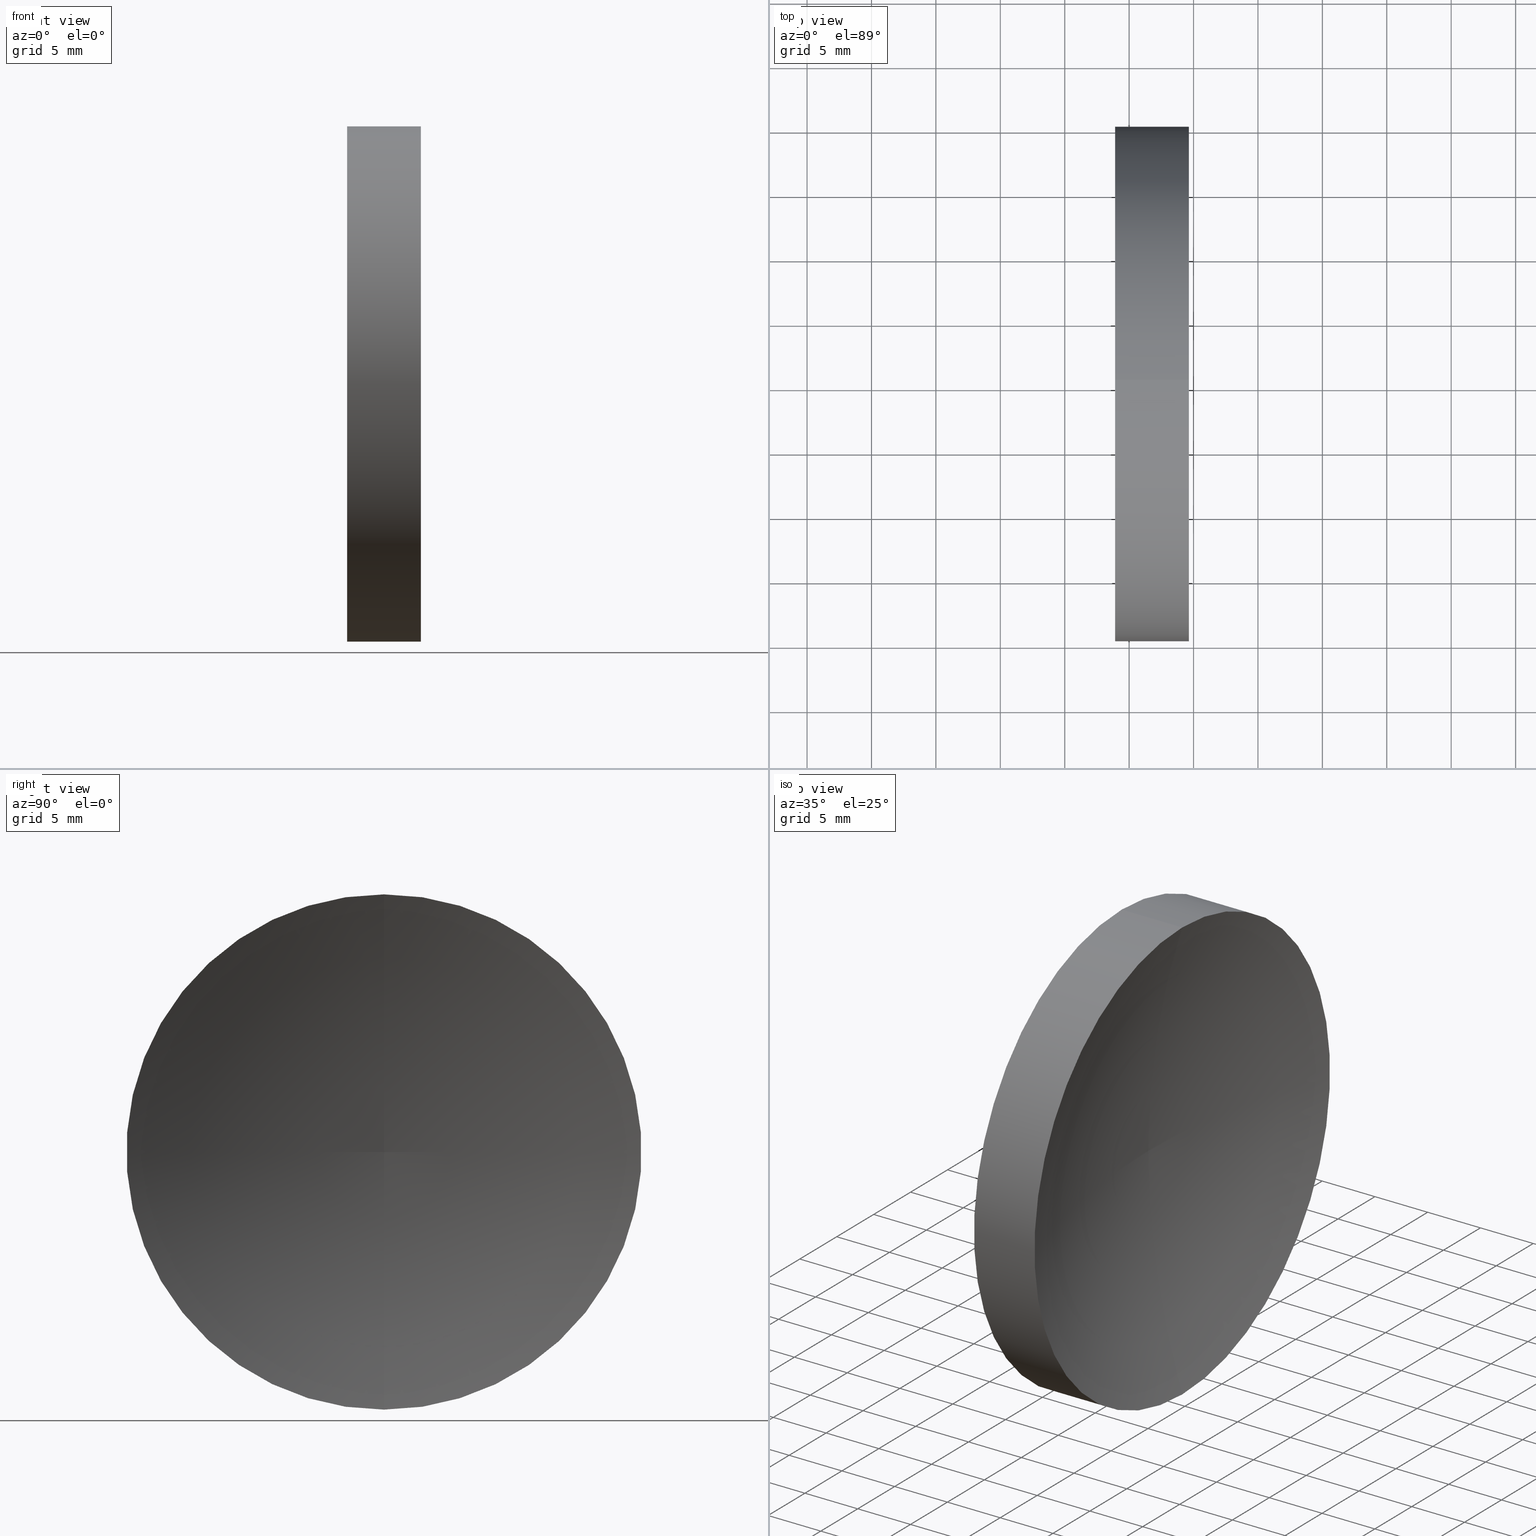
[diagram: canonical four-view strip — front | top / right | iso, engineering-drawing reading convention]
A machine part, canonical four-view strip (front | top / right | iso — engineering-drawing reading convention). The complete STEP part file that produces these views, byte-faithful:
ISO-10303-21;
HEADER;
FILE_DESCRIPTION (( 'STEP AP214' ),
    '1' );
FILE_NAME ('120048.STEP',
    '2019-06-17T07:08:32',
    ( '' ),
    ( '' ),
    'SwSTEP 2.0',
    'SolidWorks 2016',
    '' );
FILE_SCHEMA (( 'AUTOMOTIVE_DESIGN' ));
ENDSEC;

DATA;
#1 = EDGE_LOOP ( 'NONE', ( #140, #144, #99, #163 ) ) ;
#2 = ORIENTED_EDGE ( 'NONE', *, *, #83, .F. ) ;
#3 = CARTESIAN_POINT ( 'NONE',  ( 105.6218371238301200, 65.15563045701519200, 20.00000000000000400 ) ) ;
#4 = DIRECTION ( 'NONE',  ( 0.0000000000000000000, -1.000000000000000000, 0.0000000000000000000 ) ) ;
#5 = CARTESIAN_POINT ( 'NONE',  ( 113.9119316741596200, 65.15563045701519200, 0.0000000000000000000 ) ) ;
#6 =( NAMED_UNIT ( * ) PLANE_ANGLE_UNIT ( ) SI_UNIT ( $, .RADIAN. ) );
#7 = ADVANCED_FACE ( 'NONE', ( #31 ), #39, .F. ) ;
#8 = DIRECTION ( 'NONE',  ( 0.0000000000000000000, 0.0000000000000000000, 1.000000000000000000 ) ) ;
#9 = VERTEX_POINT ( 'NONE', #75 ) ;
#10 = DIRECTION ( 'NONE',  ( 0.0000000000000000000, 0.0000000000000000000, 1.000000000000000000 ) ) ;
#11 = ORIENTED_EDGE ( 'NONE', *, *, #72, .T. ) ;
#12 = AXIS2_PLACEMENT_3D ( 'NONE', #118, #146, #47 ) ;
#13 = VECTOR ( 'NONE', #105, 1000.000000000000000 ) ;
#14 = ORIENTED_EDGE ( 'NONE', *, *, #93, .F. ) ;
#15 = ORIENTED_EDGE ( 'NONE', *, *, #79, .F. ) ;
#16 = CYLINDRICAL_SURFACE ( 'NONE', #96, 20.00000000000000400 ) ;
#17 = DIRECTION ( 'NONE',  ( 0.0000000000000000000, 0.0000000000000000000, 1.000000000000000000 ) ) ;
#18 = PRODUCT_DEFINITION ( 'δ֪', '', #52, #46 ) ;
#19 = CARTESIAN_POINT ( 'NONE',  ( 180.9617514573222900, 65.15563045701519200, -0.1525318367439215700 ) ) ;
#20 = DIRECTION ( 'NONE',  ( -1.000000000000000000, -0.0000000000000000000, -0.0000000000000000000 ) ) ;
#21 = FACE_OUTER_BOUND ( 'NONE', #94, .T. ) ;
#22 = ADVANCED_FACE ( 'NONE', ( #76 ), #16, .T. ) ;
#23 = DIRECTION ( 'NONE',  ( -1.000000000000000000, -0.0000000000000000000, -0.0000000000000000000 ) ) ;
#24 =( GEOMETRIC_REPRESENTATION_CONTEXT ( 3 ) GLOBAL_UNCERTAINTY_ASSIGNED_CONTEXT ( ( #106 ) ) GLOBAL_UNIT_ASSIGNED_CONTEXT ( ( #122, #86, #49 ) ) REPRESENTATION_CONTEXT ( 'NONE', 'WORKASPACE' ) );
#25 = CARTESIAN_POINT ( 'NONE',  ( 105.6218371238301200, 65.15563045701519200, -20.00000000000000400 ) ) ;
#26 = PRODUCT ( '120048', '120048', '', ( #48 ) ) ;
#27 =( NAMED_UNIT ( * ) SI_UNIT ( $, .STERADIAN. ) SOLID_ANGLE_UNIT ( ) );
#28 = CARTESIAN_POINT ( 'NONE',  ( 180.9617514573222900, 65.15563045701519200, 0.0000000000000000000 ) ) ;
#29 = VERTEX_POINT ( 'NONE', #50 ) ;
#30 = STYLED_ITEM ( 'NONE', ( #114 ), #68 ) ;
#31 = FACE_OUTER_BOUND ( 'NONE', #67, .T. ) ;
#32 = ORIENTED_EDGE ( 'NONE', *, *, #89, .F. ) ;
#33 = SURFACE_STYLE_FILL_AREA ( #149 ) ;
#34 = EDGE_LOOP ( 'NONE', ( #136, #11 ) ) ;
#35 = APPLICATION_CONTEXT ( 'automotive_design' ) ;
#36 = CARTESIAN_POINT ( 'NONE',  ( 113.9119316741596200, 65.15563045701519200, 0.0000000000000000000 ) ) ;
#37 = PRESENTATION_LAYER_ASSIGNMENT (  '', '', ( #30 ) ) ;
#38 = CARTESIAN_POINT ( 'NONE',  ( 119.6382000225837700, 65.15563045701519200, 0.0000000000000000000 ) ) ;
#39 = TOROIDAL_SURFACE ( 'NONE', #54, -0.1525318367439215700, 64.54999999999999700 ) ;
#40 = VERTEX_POINT ( 'NONE', #108 ) ;
#41 =( NAMED_UNIT ( * ) PLANE_ANGLE_UNIT ( ) SI_UNIT ( $, .RADIAN. ) );
#42 = COLOUR_RGB ( '',1.000000000000000000, 1.000000000000000000, 1.000000000000000000 ) ;
#43 = FACE_OUTER_BOUND ( 'NONE', #64, .T. ) ;
#44 = AXIS2_PLACEMENT_3D ( 'NONE', #5, #59, #56 ) ;
#45 = CIRCLE ( 'NONE', #116, 20.00000000000000400 ) ;
#46 = PRODUCT_DEFINITION_CONTEXT ( 'detailed design', #35, 'design' ) ;
#47 = DIRECTION ( 'NONE',  ( 1.000000000000000000, 0.0000000000000000000, 0.0000000000000000000 ) ) ;
#48 = PRODUCT_CONTEXT ( 'NONE', #100, 'mechanical' ) ;
#49 =( NAMED_UNIT ( * ) SI_UNIT ( $, .STERADIAN. ) SOLID_ANGLE_UNIT ( ) );
#50 = CARTESIAN_POINT ( 'NONE',  ( 119.6382000225837700, 65.15563045701519200, 20.00000000000000400 ) ) ;
#51 = CLOSED_SHELL ( 'NONE', ( #60, #130, #7, #22, #107 ) ) ;
#52 = PRODUCT_DEFINITION_FORMATION_WITH_SPECIFIED_SOURCE ( '�κ�', '', #26, .NOT_KNOWN. ) ;
#53 = AXIS2_PLACEMENT_3D ( 'NONE', #19, #4, #104 ) ;
#54 = AXIS2_PLACEMENT_3D ( 'NONE', #28, #126, #10 ) ;
#55 = ORIENTED_EDGE ( 'NONE', *, *, #113, .T. ) ;
#56 = DIRECTION ( 'NONE',  ( 0.0000000000000000000, 0.0000000000000000000, -1.000000000000000000 ) ) ;
#57 = DIRECTION ( 'NONE',  ( -0.0000000000000000000, 1.000000000000000000, 1.224646799147353200E-016 ) ) ;
#58 = FILL_AREA_STYLE ('',( #162 ) ) ;
#59 = DIRECTION ( 'NONE',  ( 1.000000000000000000, 0.0000000000000000000, 0.0000000000000000000 ) ) ;
#60 = ADVANCED_FACE ( 'NONE', ( #43 ), #109, .T. ) ;
#61 = CARTESIAN_POINT ( 'NONE',  ( 180.9617514573222900, 65.15563045701519200, 0.0000000000000000000 ) ) ;
#62 = VERTEX_POINT ( 'NONE', #125 ) ;
#63 = DIRECTION ( 'NONE',  ( -1.000000000000000000, -0.0000000000000000000, -0.0000000000000000000 ) ) ;
#64 = EDGE_LOOP ( 'NONE', ( #137, #55, #14, #32 ) ) ;
#65 = COLOUR_RGB ( '',1.000000000000000000, 1.000000000000000000, 1.000000000000000000 ) ;
#66 = CIRCLE ( 'NONE', #53, 64.54999999999999700 ) ;
#67 = EDGE_LOOP ( 'NONE', ( #15, #119, #70 ) ) ;
#68 = ADVANCED_BREP_SHAPE_REPRESENTATION ( '120048', ( #138, #12 ), #24 ) ;
#69 = CIRCLE ( 'NONE', #78, 64.54999999999999700 ) ;
#70 = ORIENTED_EDGE ( 'NONE', *, *, #83, .T. ) ;
#71 =( GEOMETRIC_REPRESENTATION_CONTEXT ( 3 ) GLOBAL_UNCERTAINTY_ASSIGNED_CONTEXT ( ( #92 ) ) GLOBAL_UNIT_ASSIGNED_CONTEXT ( ( #74, #6, #27 ) ) REPRESENTATION_CONTEXT ( 'NONE', 'WORKASPACE' ) );
#72 = EDGE_CURVE ( 'NONE', #62, #95, #115, .T. ) ;
#73 = PLANE ( 'NONE',  #44 ) ;
#74 =( LENGTH_UNIT ( ) NAMED_UNIT ( * ) SI_UNIT ( .MILLI., .METRE. ) );
#75 = CARTESIAN_POINT ( 'NONE',  ( 119.6382000225837700, 65.15563045701519200, -20.00000000000000400 ) ) ;
#76 = FACE_OUTER_BOUND ( 'NONE', #1, .T. ) ;
#77 =( LENGTH_UNIT ( ) NAMED_UNIT ( * ) SI_UNIT ( .MILLI., .METRE. ) );
#78 = AXIS2_PLACEMENT_3D ( 'NONE', #101, #57, #123 ) ;
#79 = EDGE_CURVE ( 'NONE', #9, #40, #69, .T. ) ;
#80 = SURFACE_SIDE_STYLE ('',( #150 ) ) ;
#81 = CIRCLE ( 'NONE', #88, 20.00000000000000400 ) ;
#82 = AXIS2_PLACEMENT_3D ( 'NONE', #91, #133, #131 ) ;
#83 = EDGE_CURVE ( 'NONE', #29, #40, #66, .T. ) ;
#84 = DIRECTION ( 'NONE',  ( -1.000000000000000000, -0.0000000000000000000, -0.0000000000000000000 ) ) ;
#85 = TOROIDAL_SURFACE ( 'NONE', #158, -0.1525318367439215700, 64.54999999999999700 ) ;
#86 =( NAMED_UNIT ( * ) PLANE_ANGLE_UNIT ( ) SI_UNIT ( $, .RADIAN. ) );
#87 = SURFACE_STYLE_USAGE ( .BOTH. , #157 ) ;
#88 = AXIS2_PLACEMENT_3D ( 'NONE', #36, #20, #120 ) ;
#89 = EDGE_CURVE ( 'NONE', #29, #95, #151, .T. ) ;
#90 = FILL_AREA_STYLE_COLOUR ( '', #65 ) ;
#91 = CARTESIAN_POINT ( 'NONE',  ( 119.6382000225837700, 65.15563045701519200, 0.0000000000000000000 ) ) ;
#92 = UNCERTAINTY_MEASURE_WITH_UNIT (LENGTH_MEASURE( 1.000000000000000100E-005 ), #74, 'distance_accuracy_value', 'NONE');
#93 = EDGE_CURVE ( 'NONE', #95, #62, #81, .T. ) ;
#94 = EDGE_LOOP ( 'NONE', ( #110, #139, #2 ) ) ;
#95 = VERTEX_POINT ( 'NONE', #159 ) ;
#96 = AXIS2_PLACEMENT_3D ( 'NONE', #135, #23, #111 ) ;
#97 = EDGE_CURVE ( 'NONE', #9, #29, #124, .T. ) ;
#98 = PRODUCT_DEFINITION_SHAPE ( 'NONE', 'NONE',  #18 ) ;
#99 = ORIENTED_EDGE ( 'NONE', *, *, #89, .T. ) ;
#100 = APPLICATION_CONTEXT ( 'automotive_design' ) ;
#101 = CARTESIAN_POINT ( 'NONE',  ( 180.9617514573222900, 65.15563045701519200, 0.1525318367439215700 ) ) ;
#102 = PRESENTATION_LAYER_ASSIGNMENT (  '', '', ( #112 ) ) ;
#103 = APPLICATION_PROTOCOL_DEFINITION ( 'draft international standard', 'automotive_design', 1998, #100 ) ;
#104 = DIRECTION ( 'NONE',  ( 0.0000000000000000000, 0.0000000000000000000, -1.000000000000000000 ) ) ;
#105 = DIRECTION ( 'NONE',  ( -1.000000000000000000, -0.0000000000000000000, -0.0000000000000000000 ) ) ;
#106 = UNCERTAINTY_MEASURE_WITH_UNIT (LENGTH_MEASURE( 1.000000000000000100E-005 ), #122, 'distance_accuracy_value', 'NONE');
#107 = ADVANCED_FACE ( 'NONE', ( #143 ), #73, .F. ) ;
#108 = CARTESIAN_POINT ( 'NONE',  ( 116.4119316741596300, 65.15563045701519200, 0.0000000000000000000 ) ) ;
#109 = CYLINDRICAL_SURFACE ( 'NONE', #148, 20.00000000000000400 ) ;
#110 = ORIENTED_EDGE ( 'NONE', *, *, #97, .F. ) ;
#111 = DIRECTION ( 'NONE',  ( 0.0000000000000000000, 0.0000000000000000000, 1.000000000000000000 ) ) ;
#112 = STYLED_ITEM ( 'NONE', ( #164 ), #138 ) ;
#113 = EDGE_CURVE ( 'NONE', #9, #62, #154, .T. ) ;
#114 = PRESENTATION_STYLE_ASSIGNMENT (( #127 ) ) ;
#115 = CIRCLE ( 'NONE', #128, 20.00000000000000400 ) ;
#116 = AXIS2_PLACEMENT_3D ( 'NONE', #38, #134, #17 ) ;
#117 = VECTOR ( 'NONE', #161, 1000.000000000000000 ) ;
#118 = CARTESIAN_POINT ( 'NONE',  ( 0.0000000000000000000, 0.0000000000000000000, 0.0000000000000000000 ) ) ;
#119 = ORIENTED_EDGE ( 'NONE', *, *, #142, .F. ) ;
#120 = DIRECTION ( 'NONE',  ( 0.0000000000000000000, 0.0000000000000000000, 1.000000000000000000 ) ) ;
#121 = CARTESIAN_POINT ( 'NONE',  ( 113.9119316741596200, 65.15563045701519200, 0.0000000000000000000 ) ) ;
#122 =( LENGTH_UNIT ( ) NAMED_UNIT ( * ) SI_UNIT ( .MILLI., .METRE. ) );
#123 = DIRECTION ( 'NONE',  ( 0.0000000000000000000, -2.149928397802394700E-016, 1.000000000000000000 ) ) ;
#124 = CIRCLE ( 'NONE', #82, 20.00000000000000400 ) ;
#125 = CARTESIAN_POINT ( 'NONE',  ( 113.9119316741596200, 65.15563045701519200, -20.00000000000000400 ) ) ;
#126 = DIRECTION ( 'NONE',  ( -1.000000000000000000, -0.0000000000000000000, -0.0000000000000000000 ) ) ;
#127 = SURFACE_STYLE_USAGE ( .BOTH. , #80 ) ;
#128 = AXIS2_PLACEMENT_3D ( 'NONE', #121, #84, #147 ) ;
#129 = PRODUCT_RELATED_PRODUCT_CATEGORY ( 'part', '', ( #26 ) ) ;
#130 = ADVANCED_FACE ( 'NONE', ( #21 ), #85, .F. ) ;
#131 = DIRECTION ( 'NONE',  ( 0.0000000000000000000, 0.0000000000000000000, 1.000000000000000000 ) ) ;
#132 =( GEOMETRIC_REPRESENTATION_CONTEXT ( 3 ) GLOBAL_UNCERTAINTY_ASSIGNED_CONTEXT ( ( #166 ) ) GLOBAL_UNIT_ASSIGNED_CONTEXT ( ( #77, #41, #155 ) ) REPRESENTATION_CONTEXT ( 'NONE', 'WORKASPACE' ) );
#133 = DIRECTION ( 'NONE',  ( -1.000000000000000000, -0.0000000000000000000, -0.0000000000000000000 ) ) ;
#134 = DIRECTION ( 'NONE',  ( -1.000000000000000000, -0.0000000000000000000, -0.0000000000000000000 ) ) ;
#135 = CARTESIAN_POINT ( 'NONE',  ( 105.6218371238301200, 65.15563045701519200, 0.0000000000000000000 ) ) ;
#136 = ORIENTED_EDGE ( 'NONE', *, *, #93, .T. ) ;
#137 = ORIENTED_EDGE ( 'NONE', *, *, #142, .T. ) ;
#138 = MANIFOLD_SOLID_BREP ( '��ת1', #51 ) ;
#139 = ORIENTED_EDGE ( 'NONE', *, *, #79, .T. ) ;
#140 = ORIENTED_EDGE ( 'NONE', *, *, #113, .F. ) ;
#141 = SHAPE_DEFINITION_REPRESENTATION ( #98, #68 ) ;
#142 = EDGE_CURVE ( 'NONE', #29, #9, #45, .T. ) ;
#143 = FACE_OUTER_BOUND ( 'NONE', #34, .T. ) ;
#144 = ORIENTED_EDGE ( 'NONE', *, *, #97, .T. ) ;
#145 = DIRECTION ( 'NONE',  ( -1.000000000000000000, -0.0000000000000000000, -0.0000000000000000000 ) ) ;
#146 = DIRECTION ( 'NONE',  ( 0.0000000000000000000, 0.0000000000000000000, 1.000000000000000000 ) ) ;
#147 = DIRECTION ( 'NONE',  ( 0.0000000000000000000, 0.0000000000000000000, 1.000000000000000000 ) ) ;
#148 = AXIS2_PLACEMENT_3D ( 'NONE', #152, #63, #8 ) ;
#149 = FILL_AREA_STYLE ('',( #90 ) ) ;
#150 = SURFACE_STYLE_FILL_AREA ( #58 ) ;
#151 = LINE ( 'NONE', #3, #13 ) ;
#152 = CARTESIAN_POINT ( 'NONE',  ( 105.6218371238301200, 65.15563045701519200, 0.0000000000000000000 ) ) ;
#153 = MECHANICAL_DESIGN_GEOMETRIC_PRESENTATION_REPRESENTATION (  '', ( #112 ), #71 ) ;
#154 = LINE ( 'NONE', #25, #117 ) ;
#155 =( NAMED_UNIT ( * ) SI_UNIT ( $, .STERADIAN. ) SOLID_ANGLE_UNIT ( ) );
#156 = APPLICATION_PROTOCOL_DEFINITION ( 'draft international standard', 'automotive_design', 1998, #35 ) ;
#157 = SURFACE_SIDE_STYLE ('',( #33 ) ) ;
#158 = AXIS2_PLACEMENT_3D ( 'NONE', #61, #145, #160 ) ;
#159 = CARTESIAN_POINT ( 'NONE',  ( 113.9119316741596200, 65.15563045701519200, 20.00000000000000400 ) ) ;
#160 = DIRECTION ( 'NONE',  ( 0.0000000000000000000, 0.0000000000000000000, 1.000000000000000000 ) ) ;
#161 = DIRECTION ( 'NONE',  ( -1.000000000000000000, -0.0000000000000000000, -0.0000000000000000000 ) ) ;
#162 = FILL_AREA_STYLE_COLOUR ( '', #42 ) ;
#163 = ORIENTED_EDGE ( 'NONE', *, *, #72, .F. ) ;
#164 = PRESENTATION_STYLE_ASSIGNMENT (( #87 ) ) ;
#165 = MECHANICAL_DESIGN_GEOMETRIC_PRESENTATION_REPRESENTATION (  '', ( #30 ), #132 ) ;
#166 = UNCERTAINTY_MEASURE_WITH_UNIT (LENGTH_MEASURE( 1.000000000000000100E-005 ), #77, 'distance_accuracy_value', 'NONE');
ENDSEC;
END-ISO-10303-21;
